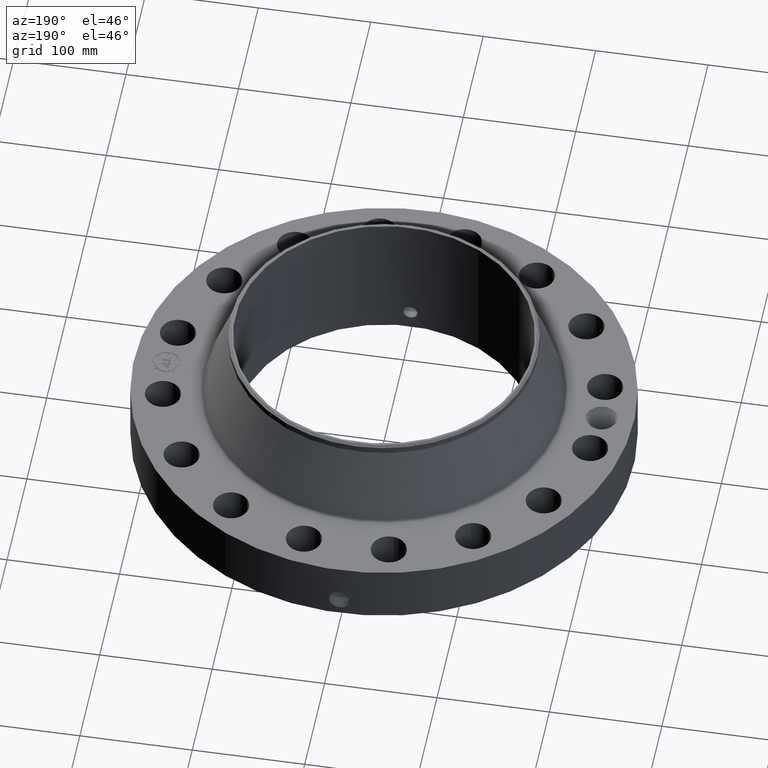
[diagram: clean part render]
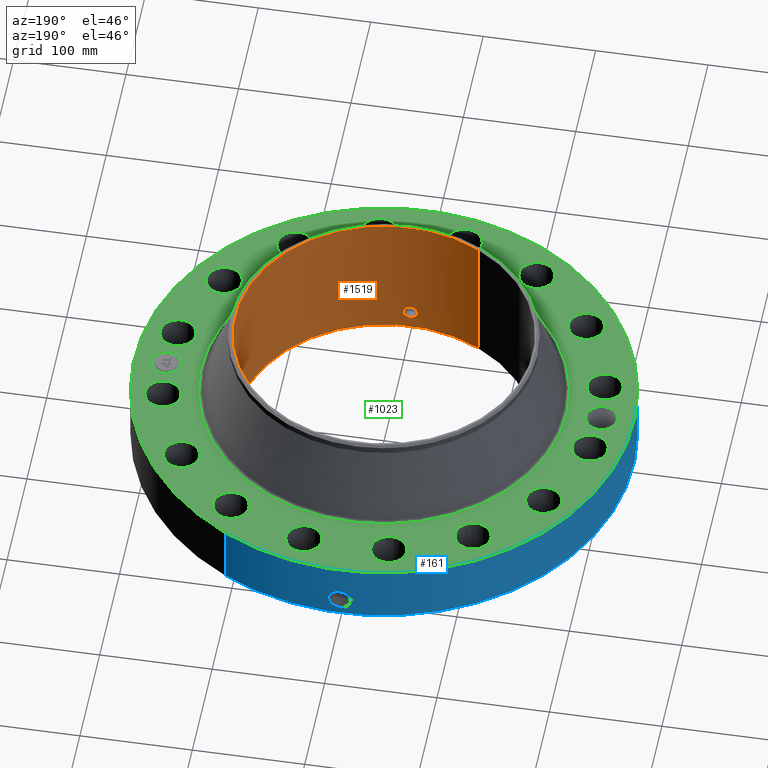
[diagram: same view with three faces highlighted in distinct colors, each labeled with its STEP entity id]
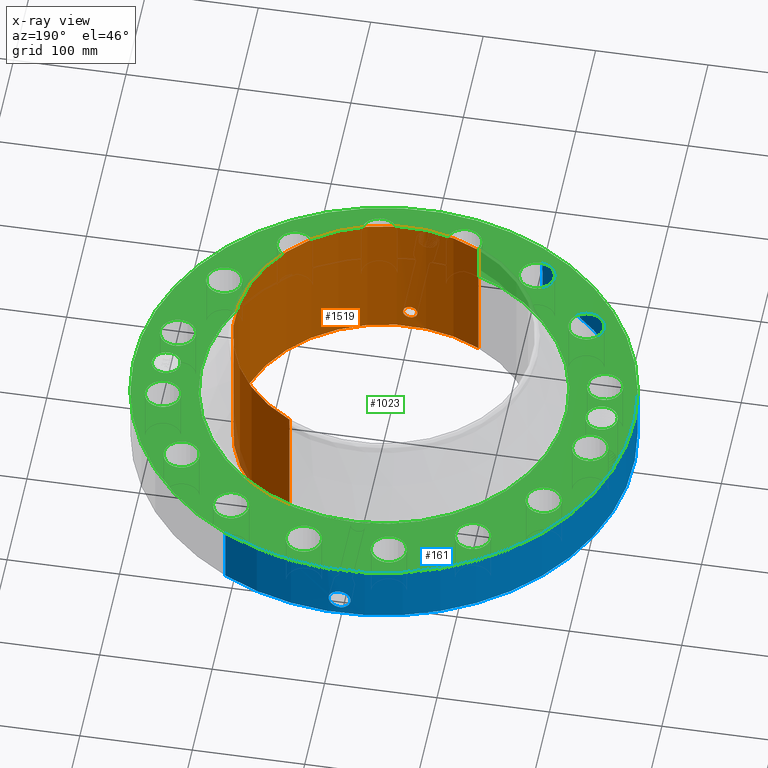
[diagram: x-ray of the same camera — body ghosted, the three highlighted faces saturated]
A machine part, auxiliary view with three faces highlighted in distinct colors.
The next image is the same camera in x-ray (body ghosted, the three faces saturated) — at least one of them is partly hidden behind the body in this view.
Their STEP definitions:

[orange] entity #1519 — the highlighted cylindrical surface (partial cylindrical patch) has radius 132.334 mm, axis along (0, 0, -1).
#250=AXIS2_PLACEMENT_3D('Circle Axis2P3D',#248,#249,$) ;
#1450=AXIS2_PLACEMENT_3D('Cylinder Axis2P3D',#1447,#1448,#1449) ;
#1454=AXIS2_PLACEMENT_3D('Circle Axis2P3D',#1452,#1453,$) ;
#248=CARTESIAN_POINT('Axis2P3D Location',(0.,0.,0.250000000001)) ;
#252=CARTESIAN_POINT('Vertex',(2.49780705614,4.57220514747,0.250000000001)) ;
#254=CARTESIAN_POINT('Vertex',(-2.49780705614,-4.57220514747,0.250000000001)) ;
#1447=CARTESIAN_POINT('Axis2P3D Location',(0.,0.,2.69000000001)) ;
#1452=CARTESIAN_POINT('Axis2P3D Location',(0.,0.,5.13000000002)) ;
#1456=CARTESIAN_POINT('Vertex',(2.49780705614,4.57220514747,5.13000000002)) ;
#1458=CARTESIAN_POINT('Vertex',(-2.49780705614,-4.57220514747,5.13000000002)) ;
#1461=CARTESIAN_POINT('Line Origine',(2.49780705614,4.57220514747,2.69000000001)) ;
#1466=CARTESIAN_POINT('Line Origine',(-2.49780705614,-4.57220514747,2.69000000001)) ;
#1478=CARTESIAN_POINT('Control Point',(0.219395640473,-5.2053785216,0.820143615352)) ;
#1479=CARTESIAN_POINT('Control Point',(0.206921702731,-5.20590427156,0.797310225472)) ;
#1480=CARTESIAN_POINT('Control Point',(0.191478170155,-5.20651775227,0.776101174169)) ;
#1481=CARTESIAN_POINT('Control Point',(0.173344984674,-5.20717156625,0.757029499509)) ;
#1482=CARTESIAN_POINT('Control Point',(0.112135178584,-5.20906263558,0.7075499254)) ;
#1483=CARTESIAN_POINT('Control Point',(0.0349794767205,-5.21029125719,0.684025896178)) ;
#1484=CARTESIAN_POINT('Control Point',(-0.0195628611526,-5.2103830242,0.682387718169)) ;
#1485=CARTESIAN_POINT('Control Point',(-0.124148978874,-5.2090305924,0.707531371156)) ;
#1486=CARTESIAN_POINT('Control Point',(-0.20319432049,-5.20623138386,0.780445772239)) ;
#1487=CARTESIAN_POINT('Control Point',(-0.232170399877,-5.20485332553,0.826662392487)) ;
#1488=CARTESIAN_POINT('Control Point',(-0.255833823077,-5.20371895022,0.904817915521)) ;
#1489=CARTESIAN_POINT('Control Point',(-0.248294621423,-5.20408005811,0.984204607757)) ;
#1490=CARTESIAN_POINT('Control Point',(-0.242060563257,-5.20438304277,1.01078607097)) ;
#1491=CARTESIAN_POINT('Control Point',(-0.232322753413,-5.20483367127,1.03619346314)) ;
#1492=CARTESIAN_POINT('Control Point',(-0.219395640473,-5.2053785216,1.05985638466)) ;
#1493=CARTESIAN_POINT('Vertex',(0.219395640473,-5.2053785216,0.820143615352)) ;
#1495=CARTESIAN_POINT('Vertex',(-0.219395640473,-5.2053785216,1.05985638466)) ;
#1499=CARTESIAN_POINT('Control Point',(-0.219395640473,-5.2053785216,1.05985638466)) ;
#1500=CARTESIAN_POINT('Control Point',(-0.206921702717,-5.20590427156,1.08268977456)) ;
#1501=CARTESIAN_POINT('Control Point',(-0.191478170121,-5.20651775227,1.10389882589)) ;
#1502=CARTESIAN_POINT('Control Point',(-0.17334498472,-5.20717156625,1.12297050046)) ;
#1503=CARTESIAN_POINT('Control Point',(-0.112135178606,-5.20906263558,1.1724500746)) ;
#1504=CARTESIAN_POINT('Control Point',(-0.0349794767043,-5.21029125719,1.19597410383)) ;
#1505=CARTESIAN_POINT('Control Point',(0.0195628611343,-5.2103830242,1.19761228184)) ;
#1506=CARTESIAN_POINT('Control Point',(0.12414897886,-5.2090305924,1.17246862886)) ;
#1507=CARTESIAN_POINT('Control Point',(0.203194320481,-5.20623138386,1.09955422778)) ;
#1508=CARTESIAN_POINT('Control Point',(0.23217039988,-5.20485332553,1.05333760751)) ;
#1509=CARTESIAN_POINT('Control Point',(0.255833823097,-5.20371895022,0.975182084416)) ;
#1510=CARTESIAN_POINT('Control Point',(0.248294621411,-5.20408005811,0.895795392119)) ;
#1511=CARTESIAN_POINT('Control Point',(0.242060563305,-5.20438304277,0.869213929157)) ;
#1512=CARTESIAN_POINT('Control Point',(0.232322753445,-5.20483367127,0.843806536923)) ;
#1513=CARTESIAN_POINT('Control Point',(0.219395640473,-5.2053785216,0.820143615352)) ;
#249=DIRECTION('Axis2P3D Direction',(0.,0.,-0.0393700787402)) ;
#1448=DIRECTION('Axis2P3D Direction',(0.,0.,-0.0393700787402)) ;
#1449=DIRECTION('Axis2P3D XDirection',(-0.0188750212049,-0.0345504945626,0.)) ;
#1453=DIRECTION('Axis2P3D Direction',(0.,0.,-0.0393700787402)) ;
#1462=DIRECTION('Vector Direction',(0.,0.,-0.0393700787402)) ;
#1467=DIRECTION('Vector Direction',(0.,0.,-0.0393700787402)) ;
#1463=VECTOR('Line Direction',#1462,0.0393700787402) ;
#1468=VECTOR('Line Direction',#1467,0.0393700787402) ;
#1472=ORIENTED_EDGE('',*,*,#1460,.F.) ;
#1473=ORIENTED_EDGE('',*,*,#1465,.T.) ;
#1474=ORIENTED_EDGE('',*,*,#256,.T.) ;
#1475=ORIENTED_EDGE('',*,*,#1470,.F.) ;
#1516=ORIENTED_EDGE('',*,*,#1497,.F.) ;
#1517=ORIENTED_EDGE('',*,*,#1514,.F.) ;
#1518=FACE_BOUND('',#1515,.T.) ;
#1519=ADVANCED_FACE('PartBody',(#1476,#1518),#1451,.F.) ;
#1477=B_SPLINE_CURVE_WITH_KNOTS('',5,(#1478,#1479,#1480,#1481,#1482,#1483,#1484,#1485,#1486,#1487,#1488,#1489,#1490,#1491,#1492),.UNSPECIFIED.,.F.,.U.,(6,3,3,3,6),(0.,4.67401145238,14.0221832362,23.3721751155,28.2159922942),.UNSPECIFIED.) ;
#1498=B_SPLINE_CURVE_WITH_KNOTS('',5,(#1499,#1500,#1501,#1502,#1503,#1504,#1505,#1506,#1507,#1508,#1509,#1510,#1511,#1512,#1513),.UNSPECIFIED.,.F.,.U.,(6,3,3,3,6),(0.,4.67401145758,14.022183243,23.3721751212,28.2159923117),.UNSPECIFIED.) ;
#251=CIRCLE('generated circle',#250,5.21000000002) ;
#1455=CIRCLE('generated circle',#1454,5.21000000002) ;
#1451=CYLINDRICAL_SURFACE('generated cylinder',#1450,5.21000000002) ;
#256=EDGE_CURVE('',#253,#255,#251,.T.) ;
#1460=EDGE_CURVE('',#1457,#1459,#1455,.T.) ;
#1465=EDGE_CURVE('',#1457,#253,#1464,.T.) ;
#1470=EDGE_CURVE('',#1459,#255,#1469,.T.) ;
#1497=EDGE_CURVE('',#1494,#1496,#1477,.T.) ;
#1514=EDGE_CURVE('',#1496,#1494,#1498,.T.) ;
#1471=EDGE_LOOP('',(#1472,#1473,#1474,#1475)) ;
#1515=EDGE_LOOP('',(#1516,#1517)) ;
#1476=FACE_OUTER_BOUND('',#1471,.T.) ;
#1464=LINE('Line',#1461,#1463) ;
#1469=LINE('Line',#1466,#1468) ;
#253=VERTEX_POINT('',#252) ;
#255=VERTEX_POINT('',#254) ;
#1457=VERTEX_POINT('',#1456) ;
#1459=VERTEX_POINT('',#1458) ;
#1494=VERTEX_POINT('',#1493) ;
#1496=VERTEX_POINT('',#1495) ;

[blue] entity #161 — the highlighted cylindrical surface (partial cylindrical patch) has radius 222.25 mm, axis along (0, 0, -1).
#38=AXIS2_PLACEMENT_3D('Cylinder Axis2P3D',#35,#36,#37) ;
#42=AXIS2_PLACEMENT_3D('Circle Axis2P3D',#40,#41,$) ;
#58=AXIS2_PLACEMENT_3D('Circle Axis2P3D',#56,#57,$) ;
#35=CARTESIAN_POINT('Axis2P3D Location',(0.,0.,2.69000000001)) ;
#40=CARTESIAN_POINT('Axis2P3D Location',(0.,0.,0.250000000001)) ;
#44=CARTESIAN_POINT('Vertex',(-4.1949734628,-7.67884741657,0.250000000001)) ;
#46=CARTESIAN_POINT('Vertex',(4.1949734628,7.67884741657,0.250000000001)) ;
#49=CARTESIAN_POINT('Line Origine',(-4.1949734628,-7.67884741657,1.31000000001)) ;
#53=CARTESIAN_POINT('Vertex',(-4.1949734628,-7.67884741657,2.37000000001)) ;
#56=CARTESIAN_POINT('Axis2P3D Location',(0.,0.,2.37000000001)) ;
#60=CARTESIAN_POINT('Vertex',(4.1949734628,7.67884741657,2.37000000001)) ;
#63=CARTESIAN_POINT('Line Origine',(4.1949734628,7.67884741657,1.31000000001)) ;
#75=CARTESIAN_POINT('Control Point',(-0.0581089625366,8.74980704639,1.28931263406)) ;
#76=CARTESIAN_POINT('Control Point',(-0.0391512505226,8.74993294779,1.29247036247)) ;
#77=CARTESIAN_POINT('Control Point',(-0.0199353917117,8.74999839758,1.29407954697)) ;
#78=CARTESIAN_POINT('Control Point',(-0.000716211353151,8.74999997072,1.29411849893)) ;
#79=CARTESIAN_POINT('Vertex',(-0.0580953077663,8.74980738873,1.28931519353)) ;
#81=CARTESIAN_POINT('Vertex',(-0.000716087123921,8.74999997073,1.29411850938)) ;
#85=CARTESIAN_POINT('Control Point',(-0.0580952083203,8.74980713772,1.28931463772)) ;
#86=CARTESIAN_POINT('Control Point',(-0.0974883504032,8.74954558307,1.28448275707)) ;
#87=CARTESIAN_POINT('Control Point',(-0.13613006223,8.749012969,1.27246972711)) ;
#88=CARTESIAN_POINT('Control Point',(-0.171610206376,8.74831697744,1.25416185771)) ;
#89=CARTESIAN_POINT('Vertex',(-0.171610206376,8.74831697744,1.25416185771)) ;
#93=CARTESIAN_POINT('Control Point',(-0.0302669452421,8.74994765199,0.531133858009)) ;
#94=CARTESIAN_POINT('Control Point',(-0.0865126331868,8.74975309253,0.538286206305)) ;
#95=CARTESIAN_POINT('Control Point',(-0.141163784497,8.74911210098,0.555899644807)) ;
#96=CARTESIAN_POINT('Control Point',(-0.191479474381,8.74808366127,0.583467507006)) ;
#97=CARTESIAN_POINT('Control Point',(-0.264585210891,8.74612690907,0.642883900374)) ;
#98=CARTESIAN_POINT('Control Point',(-0.316528471613,8.74430507465,0.719208877289)) ;
#99=CARTESIAN_POINT('Control Point',(-0.333583708525,8.74365536413,0.75188083272)) ;
#100=CARTESIAN_POINT('Control Point',(-0.368975032972,8.74224702288,0.844035268682)) ;
#101=CARTESIAN_POINT('Control Point',(-0.375098714797,8.74194353724,0.942677587401)) ;
#102=CARTESIAN_POINT('Control Point',(-0.366946053507,8.7423150234,1.0043264818)) ;
#103=CARTESIAN_POINT('Control Point',(-0.333642919166,8.7437418217,1.10228712867)) ;
#104=CARTESIAN_POINT('Control Point',(-0.270966418058,8.74586349314,1.18272418421)) ;
#105=CARTESIAN_POINT('Control Point',(-0.241231340915,8.74676440562,1.21147018008)) ;
#106=CARTESIAN_POINT('Control Point',(-0.20776613861,8.74760772936,1.23550527929)) ;
#107=CARTESIAN_POINT('Control Point',(-0.171610206376,8.74831697744,1.25416185771)) ;
#108=CARTESIAN_POINT('Vertex',(-0.0302669452421,8.74994765199,0.531133858009)) ;
#112=CARTESIAN_POINT('Control Point',(-0.0302669452421,8.74994765199,0.531133858009)) ;
#113=CARTESIAN_POINT('Control Point',(-0.020172125313,8.74998257099,0.530866678197)) ;
#114=CARTESIAN_POINT('Control Point',(-0.0100722732255,8.75000000318,0.530947102164)) ;
#115=CARTESIAN_POINT('Control Point',(2.72878355316E-006,8.75000000003,0.531374667805)) ;
#116=CARTESIAN_POINT('Vertex',(2.72878354006E-006,8.75000000003,0.531374667805)) ;
#120=CARTESIAN_POINT('Control Point',(0.19328241765,8.74786499139,0.58620888473)) ;
#121=CARTESIAN_POINT('Control Point',(0.14925996288,8.74883765918,0.561336698188)) ;
#122=CARTESIAN_POINT('Control Point',(0.101168835308,8.74960564366,0.543535968941)) ;
#123=CARTESIAN_POINT('Control Point',(0.0508246752075,8.74999998419,0.533531464398)) ;
#124=CARTESIAN_POINT('Control Point',(2.72878352208E-006,8.75000000003,0.531374667805)) ;
#125=CARTESIAN_POINT('Vertex',(0.19328241765,8.74786499139,0.58620888473)) ;
#129=CARTESIAN_POINT('Control Point',(0.19328241765,8.74786499139,0.58620888473)) ;
#130=CARTESIAN_POINT('Control Point',(0.222320018174,8.74722341112,0.602614798428)) ;
#131=CARTESIAN_POINT('Control Point',(0.249702852839,8.74649784976,0.621904373427)) ;
#132=CARTESIAN_POINT('Control Point',(0.275025900449,8.74572453906,0.643907791763)) ;
#133=CARTESIAN_POINT('Control Point',(0.341959851597,8.74345928948,0.715550689478)) ;
#134=CARTESIAN_POINT('Control Point',(0.384721494864,8.74157999932,0.805221661373)) ;
#135=CARTESIAN_POINT('Control Point',(0.399824078796,8.74084549763,0.86959665655)) ;
#136=CARTESIAN_POINT('Control Point',(0.400741236113,8.74084616963,0.983900945049)) ;
#137=CARTESIAN_POINT('Control Point',(0.360682761484,8.74259093649,1.08862858384)) ;
#138=CARTESIAN_POINT('Control Point',(0.336434934039,8.74359787656,1.13009590906)) ;
#139=CARTESIAN_POINT('Control Point',(0.267541246707,8.74613174572,1.21398892367)) ;
#140=CARTESIAN_POINT('Control Point',(0.174601876313,8.74851033483,1.26870826522)) ;
#141=CARTESIAN_POINT('Control Point',(0.117427738831,8.74951483398,1.28858356661)) ;
#142=CARTESIAN_POINT('Control Point',(0.0582715844926,8.75000017228,1.29701111921)) ;
#143=CARTESIAN_POINT('Control Point',(-2.58579355255E-005,8.75,1.29415298432)) ;
#144=CARTESIAN_POINT('Vertex',(-2.58579355366E-005,8.75,1.29415298432)) ;
#148=CARTESIAN_POINT('Control Point',(-0.000716087113735,8.74999997073,1.29411850936)) ;
#149=CARTESIAN_POINT('Control Point',(-0.000370996570186,8.74999999898,1.2941360633)) ;
#150=CARTESIAN_POINT('Control Point',(-2.58579413603E-005,8.75,1.29415298432)) ;
#36=DIRECTION('Axis2P3D Direction',(0.,0.,-0.0393700787402)) ;
#37=DIRECTION('Axis2P3D XDirection',(0.0188750212049,0.0345504945626,0.)) ;
#41=DIRECTION('Axis2P3D Direction',(0.,0.,-0.0393700787402)) ;
#50=DIRECTION('Vector Direction',(0.,0.,-0.0393700787402)) ;
#57=DIRECTION('Axis2P3D Direction',(0.,0.,-0.0393700787402)) ;
#64=DIRECTION('Vector Direction',(0.,0.,-0.0393700787402)) ;
#51=VECTOR('Line Direction',#50,0.0393700787402) ;
#65=VECTOR('Line Direction',#64,0.0393700787402) ;
#69=ORIENTED_EDGE('',*,*,#48,.F.) ;
#70=ORIENTED_EDGE('',*,*,#55,.T.) ;
#71=ORIENTED_EDGE('',*,*,#62,.T.) ;
#72=ORIENTED_EDGE('',*,*,#67,.F.) ;
#153=ORIENTED_EDGE('',*,*,#83,.F.) ;
#154=ORIENTED_EDGE('',*,*,#91,.T.) ;
#155=ORIENTED_EDGE('',*,*,#110,.F.) ;
#156=ORIENTED_EDGE('',*,*,#118,.T.) ;
#157=ORIENTED_EDGE('',*,*,#127,.F.) ;
#158=ORIENTED_EDGE('',*,*,#146,.T.) ;
#159=ORIENTED_EDGE('',*,*,#151,.F.) ;
#160=FACE_BOUND('',#152,.T.) ;
#161=ADVANCED_FACE('PartBody',(#73,#160),#39,.T.) ;
#74=B_SPLINE_CURVE_WITH_KNOTS('',3,(#75,#76,#77,#78),.UNSPECIFIED.,.F.,.U.,(4,4),(4.38916387412,6.52135751601),.UNSPECIFIED.) ;
#84=B_SPLINE_CURVE_WITH_KNOTS('',3,(#85,#86,#87,#88),.UNSPECIFIED.,.F.,.U.,(4,4),(0.,4.45941834612),.UNSPECIFIED.) ;
#92=B_SPLINE_CURVE_WITH_KNOTS('',5,(#93,#94,#95,#96,#97,#98,#99,#100,#101,#102,#103,#104,#105,#106,#107),.UNSPECIFIED.,.F.,.U.,(6,3,3,3,6),(0.,9.85389268392,16.4310811859,27.5941599095,35.1680876067),.UNSPECIFIED.) ;
#111=B_SPLINE_CURVE_WITH_KNOTS('',3,(#112,#113,#114,#115),.UNSPECIFIED.,.F.,.U.,(4,4),(0.,1.05295553536),.UNSPECIFIED.) ;
#119=B_SPLINE_CURVE_WITH_KNOTS('',4,(#120,#121,#122,#123,#124),.UNSPECIFIED.,.F.,.U.,(5,5),(0.,7.08198368507),.UNSPECIFIED.) ;
#128=B_SPLINE_CURVE_WITH_KNOTS('',5,(#129,#130,#131,#132,#133,#134,#135,#136,#137,#138,#139,#140,#141,#142,#143),.UNSPECIFIED.,.F.,.U.,(6,3,3,3,6),(0.,5.83917379762,17.1007627844,25.5637752972,36.4607761754),.UNSPECIFIED.) ;
#147=B_SPLINE_CURVE_WITH_KNOTS('',2,(#148,#149,#150),.UNSPECIFIED.,.F.,.U.,(3,3),(1.04631464727,1.07212007524),.UNSPECIFIED.) ;
#43=CIRCLE('generated circle',#42,8.75000000003) ;
#59=CIRCLE('generated circle',#58,8.75000000003) ;
#39=CYLINDRICAL_SURFACE('generated cylinder',#38,8.75000000003) ;
#48=EDGE_CURVE('',#45,#47,#43,.T.) ;
#55=EDGE_CURVE('',#45,#54,#52,.F.) ;
#62=EDGE_CURVE('',#54,#61,#59,.T.) ;
#67=EDGE_CURVE('',#47,#61,#66,.F.) ;
#83=EDGE_CURVE('',#80,#82,#74,.T.) ;
#91=EDGE_CURVE('',#80,#90,#84,.T.) ;
#110=EDGE_CURVE('',#109,#90,#92,.T.) ;
#118=EDGE_CURVE('',#109,#117,#111,.T.) ;
#127=EDGE_CURVE('',#126,#117,#119,.T.) ;
#146=EDGE_CURVE('',#126,#145,#128,.T.) ;
#151=EDGE_CURVE('',#82,#145,#147,.T.) ;
#68=EDGE_LOOP('',(#69,#70,#71,#72)) ;
#152=EDGE_LOOP('',(#153,#154,#155,#156,#157,#158,#159)) ;
#73=FACE_OUTER_BOUND('',#68,.T.) ;
#52=LINE('Line',#49,#51) ;
#66=LINE('Line',#63,#65) ;
#45=VERTEX_POINT('',#44) ;
#47=VERTEX_POINT('',#46) ;
#54=VERTEX_POINT('',#53) ;
#61=VERTEX_POINT('',#60) ;
#80=VERTEX_POINT('',#79) ;
#82=VERTEX_POINT('',#81) ;
#90=VERTEX_POINT('',#89) ;
#109=VERTEX_POINT('',#108) ;
#117=VERTEX_POINT('',#116) ;
#126=VERTEX_POINT('',#125) ;
#145=VERTEX_POINT('',#144) ;

[green] entity #1023 — the highlighted planar face has unit normal (0, 0, -1).
#58=AXIS2_PLACEMENT_3D('Circle Axis2P3D',#56,#57,$) ;
#539=AXIS2_PLACEMENT_3D('Circle Axis2P3D',#537,#538,$) ;
#639=AXIS2_PLACEMENT_3D('Plane Axis2P3D',#636,#637,#638) ;
#675=AXIS2_PLACEMENT_3D('Circle Axis2P3D',#673,#674,$) ;
#682=AXIS2_PLACEMENT_3D('Circle Axis2P3D',#680,#681,$) ;
#689=AXIS2_PLACEMENT_3D('Circle Axis2P3D',#687,#688,$) ;
#701=AXIS2_PLACEMENT_3D('Circle Axis2P3D',#699,#700,$) ;
#710=AXIS2_PLACEMENT_3D('Circle Axis2P3D',#708,#709,$) ;
#719=AXIS2_PLACEMENT_3D('Circle Axis2P3D',#717,#718,$) ;
#728=AXIS2_PLACEMENT_3D('Circle Axis2P3D',#726,#727,$) ;
#737=AXIS2_PLACEMENT_3D('Circle Axis2P3D',#735,#736,$) ;
#746=AXIS2_PLACEMENT_3D('Circle Axis2P3D',#744,#745,$) ;
#755=AXIS2_PLACEMENT_3D('Circle Axis2P3D',#753,#754,$) ;
#764=AXIS2_PLACEMENT_3D('Circle Axis2P3D',#762,#763,$) ;
#773=AXIS2_PLACEMENT_3D('Circle Axis2P3D',#771,#772,$) ;
#782=AXIS2_PLACEMENT_3D('Circle Axis2P3D',#780,#781,$) ;
#791=AXIS2_PLACEMENT_3D('Circle Axis2P3D',#789,#790,$) ;
#800=AXIS2_PLACEMENT_3D('Circle Axis2P3D',#798,#799,$) ;
#809=AXIS2_PLACEMENT_3D('Circle Axis2P3D',#807,#808,$) ;
#818=AXIS2_PLACEMENT_3D('Circle Axis2P3D',#816,#817,$) ;
#827=AXIS2_PLACEMENT_3D('Circle Axis2P3D',#825,#826,$) ;
#836=AXIS2_PLACEMENT_3D('Circle Axis2P3D',#834,#835,$) ;
#845=AXIS2_PLACEMENT_3D('Circle Axis2P3D',#843,#844,$) ;
#854=AXIS2_PLACEMENT_3D('Circle Axis2P3D',#852,#853,$) ;
#863=AXIS2_PLACEMENT_3D('Circle Axis2P3D',#861,#862,$) ;
#872=AXIS2_PLACEMENT_3D('Circle Axis2P3D',#870,#871,$) ;
#881=AXIS2_PLACEMENT_3D('Circle Axis2P3D',#879,#880,$) ;
#890=AXIS2_PLACEMENT_3D('Circle Axis2P3D',#888,#889,$) ;
#899=AXIS2_PLACEMENT_3D('Circle Axis2P3D',#897,#898,$) ;
#908=AXIS2_PLACEMENT_3D('Circle Axis2P3D',#906,#907,$) ;
#917=AXIS2_PLACEMENT_3D('Circle Axis2P3D',#915,#916,$) ;
#926=AXIS2_PLACEMENT_3D('Circle Axis2P3D',#924,#925,$) ;
#935=AXIS2_PLACEMENT_3D('Circle Axis2P3D',#933,#934,$) ;
#944=AXIS2_PLACEMENT_3D('Circle Axis2P3D',#942,#943,$) ;
#953=AXIS2_PLACEMENT_3D('Circle Axis2P3D',#951,#952,$) ;
#962=AXIS2_PLACEMENT_3D('Circle Axis2P3D',#960,#961,$) ;
#971=AXIS2_PLACEMENT_3D('Circle Axis2P3D',#969,#970,$) ;
#980=AXIS2_PLACEMENT_3D('Circle Axis2P3D',#978,#979,$) ;
#989=AXIS2_PLACEMENT_3D('Circle Axis2P3D',#987,#988,$) ;
#998=AXIS2_PLACEMENT_3D('Circle Axis2P3D',#996,#997,$) ;
#1007=AXIS2_PLACEMENT_3D('Circle Axis2P3D',#1005,#1006,$) ;
#1016=AXIS2_PLACEMENT_3D('Circle Axis2P3D',#1014,#1015,$) ;
#53=CARTESIAN_POINT('Vertex',(-4.1949734628,-7.67884741657,2.37000000001)) ;
#56=CARTESIAN_POINT('Axis2P3D Location',(0.,0.,2.37000000001)) ;
#60=CARTESIAN_POINT('Vertex',(4.1949734628,7.67884741657,2.37000000001)) ;
#537=CARTESIAN_POINT('Axis2P3D Location',(0.,0.,2.37000000001)) ;
#636=CARTESIAN_POINT('Axis2P3D Location',(0.,8.75000000003,2.37000000001)) ;
#646=CARTESIAN_POINT('Control Point',(-7.06250000003,0.,2.37000000001)) ;
#647=CARTESIAN_POINT('Control Point',(-7.06446298299,0.0486163636845,2.37000000001)) ;
#648=CARTESIAN_POINT('Control Point',(-7.07168281614,0.096921440334,2.37000000001)) ;
#649=CARTESIAN_POINT('Control Point',(-7.08411697116,0.144150906714,2.37000000001)) ;
#650=CARTESIAN_POINT('Control Point',(-7.10234425253,0.191616400428,2.37000000001)) ;
#651=CARTESIAN_POINT('Control Point',(-7.12563938019,0.236345157382,2.37000000001)) ;
#652=CARTESIAN_POINT('Control Point',(-7.12666372234,0.238288331361,2.37000000001)) ;
#653=CARTESIAN_POINT('Control Point',(-7.12769761217,0.240226185511,2.37000000001)) ;
#654=CARTESIAN_POINT('Control Point',(-7.12874101425,0.242158656953,2.37000000001)) ;
#655=CARTESIAN_POINT('Vertex',(-7.06250000003,0.,2.37000000001)) ;
#657=CARTESIAN_POINT('Vertex',(-7.12874101425,0.242158656953,2.37000000001)) ;
#661=CARTESIAN_POINT('Control Point',(-7.06250000003,0.,2.37000000001)) ;
#662=CARTESIAN_POINT('Control Point',(-7.06446358948,-0.0486313829753,2.37000000001)) ;
#663=CARTESIAN_POINT('Control Point',(-7.07168728763,-0.0969512863355,2.37000000001)) ;
#664=CARTESIAN_POINT('Control Point',(-7.08412001795,-0.144176677374,2.37000000001)) ;
#665=CARTESIAN_POINT('Control Point',(-7.10236431676,-0.191689550633,2.37000000001)) ;
#666=CARTESIAN_POINT('Control Point',(-7.12567489204,-0.236441716072,2.37000000001)) ;
#667=CARTESIAN_POINT('Control Point',(-7.12673354021,-0.238448876166,2.37000000001)) ;
#668=CARTESIAN_POINT('Control Point',(-7.12780235955,-0.240450312534,2.37000000001)) ;
#669=CARTESIAN_POINT('Control Point',(-7.12888131021,-0.242445956271,2.37000000001)) ;
#670=CARTESIAN_POINT('Vertex',(-7.12888131021,-0.242445956271,2.37000000001)) ;
#673=CARTESIAN_POINT('Axis2P3D Location',(-7.62500000003,-1.1189649382E-015,2.37000000001)) ;
#677=CARTESIAN_POINT('Vertex',(-7.14040768518,-0.264733988163,2.37000000001)) ;
#680=CARTESIAN_POINT('Axis2P3D Location',(-7.62500000003,-1.1189649382E-015,2.37000000001)) ;
#684=CARTESIAN_POINT('Vertex',(-8.10959231488,0.264733988163,2.37000000001)) ;
#687=CARTESIAN_POINT('Axis2P3D Location',(-7.62500000003,-1.1189649382E-015,2.37000000001)) ;
#699=CARTESIAN_POINT('Axis2P3D Location',(7.4784877631,-1.48756370538,2.37000000001)) ;
#703=CARTESIAN_POINT('Vertex',(6.92999866192,-1.18792274375,2.37000000001)) ;
#705=CARTESIAN_POINT('Vertex',(8.02697686429,-1.78720466701,2.37000000001)) ;
#708=CARTESIAN_POINT('Axis2P3D Location',(7.4784877631,-1.48756370538,2.37000000001)) ;
#717=CARTESIAN_POINT('Axis2P3D Location',(0.,0.,2.37000000001)) ;
#721=CARTESIAN_POINT('Vertex',(-3.06484130292,-5.61015437399,2.37000000001)) ;
#723=CARTESIAN_POINT('Vertex',(3.06484130292,5.61015437399,2.37000000001)) ;
#726=CARTESIAN_POINT('Axis2P3D Location',(0.,0.,2.37000000001)) ;
#735=CARTESIAN_POINT('Axis2P3D Location',(6.33995579383,-4.23622302679,2.37000000001)) ;
#739=CARTESIAN_POINT('Vertex',(6.73202601655,-4.7229528702,2.37000000001)) ;
#741=CARTESIAN_POINT('Vertex',(5.94788557112,-3.74949318338,2.37000000001)) ;
#744=CARTESIAN_POINT('Axis2P3D Location',(6.33995579383,-4.23622302679,2.37000000001)) ;
#753=CARTESIAN_POINT('Axis2P3D Location',(4.23622302679,-6.33995579383,2.37000000001)) ;
#757=CARTESIAN_POINT('Vertex',(4.41218523376,-6.93967431258,2.37000000001)) ;
#759=CARTESIAN_POINT('Vertex',(4.06026081983,-5.74023727509,2.37000000001)) ;
#762=CARTESIAN_POINT('Axis2P3D Location',(4.23622302679,-6.33995579383,2.37000000001)) ;
#771=CARTESIAN_POINT('Axis2P3D Location',(1.48756370538,-7.4784877631,2.37000000001)) ;
#775=CARTESIAN_POINT('Vertex',(1.42062924568,-8.09989324917,2.37000000001)) ;
#777=CARTESIAN_POINT('Vertex',(1.55449816507,-6.85708227704,2.37000000001)) ;
#780=CARTESIAN_POINT('Axis2P3D Location',(1.48756370538,-7.4784877631,2.37000000001)) ;
#789=CARTESIAN_POINT('Axis2P3D Location',(-1.48756370538,-7.4784877631,2.37000000001)) ;
#793=CARTESIAN_POINT('Vertex',(-1.78720466701,-8.02697686429,2.37000000001)) ;
#795=CARTESIAN_POINT('Vertex',(-1.18792274375,-6.92999866192,2.37000000001)) ;
#798=CARTESIAN_POINT('Axis2P3D Location',(-1.48756370538,-7.4784877631,2.37000000001)) ;
#807=CARTESIAN_POINT('Axis2P3D Location',(-4.23622302679,-6.33995579383,2.37000000001)) ;
#811=CARTESIAN_POINT('Vertex',(-4.7229528702,-6.73202601655,2.37000000001)) ;
#813=CARTESIAN_POINT('Vertex',(-3.74949318338,-5.94788557112,2.37000000001)) ;
#816=CARTESIAN_POINT('Axis2P3D Location',(-4.23622302679,-6.33995579383,2.37000000001)) ;
#825=CARTESIAN_POINT('Axis2P3D Location',(-6.33995579383,-4.23622302679,2.37000000001)) ;
#829=CARTESIAN_POINT('Vertex',(-6.93967431258,-4.41218523376,2.37000000001)) ;
#831=CARTESIAN_POINT('Vertex',(-5.74023727509,-4.06026081983,2.37000000001)) ;
#834=CARTESIAN_POINT('Axis2P3D Location',(-6.33995579383,-4.23622302679,2.37000000001)) ;
#843=CARTESIAN_POINT('Axis2P3D Location',(-7.4784877631,-1.48756370538,2.37000000001)) ;
#847=CARTESIAN_POINT('Vertex',(-8.09989324917,-1.42062924568,2.37000000001)) ;
#849=CARTESIAN_POINT('Vertex',(-6.85708227704,-1.55449816507,2.37000000001)) ;
#852=CARTESIAN_POINT('Axis2P3D Location',(-7.4784877631,-1.48756370538,2.37000000001)) ;
#861=CARTESIAN_POINT('Axis2P3D Location',(-7.4784877631,1.48756370538,2.37000000001)) ;
#865=CARTESIAN_POINT('Vertex',(-8.02697686429,1.78720466701,2.37000000001)) ;
#867=CARTESIAN_POINT('Vertex',(-6.92999866192,1.18792274375,2.37000000001)) ;
#870=CARTESIAN_POINT('Axis2P3D Location',(-7.4784877631,1.48756370538,2.37000000001)) ;
#879=CARTESIAN_POINT('Axis2P3D Location',(-6.33995579383,4.23622302679,2.37000000001)) ;
#883=CARTESIAN_POINT('Vertex',(-6.73202601655,4.7229528702,2.37000000001)) ;
#885=CARTESIAN_POINT('Vertex',(-5.94788557112,3.74949318338,2.37000000001)) ;
#888=CARTESIAN_POINT('Axis2P3D Location',(-6.33995579383,4.23622302679,2.37000000001)) ;
#897=CARTESIAN_POINT('Axis2P3D Location',(-4.23622302679,6.33995579383,2.37000000001)) ;
#901=CARTESIAN_POINT('Vertex',(-4.41218523376,6.93967431258,2.37000000001)) ;
#903=CARTESIAN_POINT('Vertex',(-4.06026081983,5.74023727509,2.37000000001)) ;
#906=CARTESIAN_POINT('Axis2P3D Location',(-4.23622302679,6.33995579383,2.37000000001)) ;
#915=CARTESIAN_POINT('Axis2P3D Location',(-1.48756370538,7.4784877631,2.37000000001)) ;
#919=CARTESIAN_POINT('Vertex',(-1.42062924568,8.09989324917,2.37000000001)) ;
#921=CARTESIAN_POINT('Vertex',(-1.55449816507,6.85708227704,2.37000000001)) ;
#924=CARTESIAN_POINT('Axis2P3D Location',(-1.48756370538,7.4784877631,2.37000000001)) ;
#933=CARTESIAN_POINT('Axis2P3D Location',(1.48756370538,7.4784877631,2.37000000001)) ;
#937=CARTESIAN_POINT('Vertex',(1.78720466701,8.02697686429,2.37000000001)) ;
#939=CARTESIAN_POINT('Vertex',(1.18792274375,6.92999866192,2.37000000001)) ;
#942=CARTESIAN_POINT('Axis2P3D Location',(1.48756370538,7.4784877631,2.37000000001)) ;
#951=CARTESIAN_POINT('Axis2P3D Location',(4.23622302679,6.33995579383,2.37000000001)) ;
#955=CARTESIAN_POINT('Vertex',(4.7229528702,6.73202601655,2.37000000001)) ;
#957=CARTESIAN_POINT('Vertex',(3.74949318338,5.94788557112,2.37000000001)) ;
#960=CARTESIAN_POINT('Axis2P3D Location',(4.23622302679,6.33995579383,2.37000000001)) ;
#969=CARTESIAN_POINT('Axis2P3D Location',(6.33995579383,4.23622302679,2.37000000001)) ;
#973=CARTESIAN_POINT('Vertex',(6.93967431258,4.41218523376,2.37000000001)) ;
#975=CARTESIAN_POINT('Vertex',(5.74023727509,4.06026081983,2.37000000001)) ;
#978=CARTESIAN_POINT('Axis2P3D Location',(6.33995579383,4.23622302679,2.37000000001)) ;
#987=CARTESIAN_POINT('Axis2P3D Location',(7.4784877631,1.48756370538,2.37000000001)) ;
#991=CARTESIAN_POINT('Vertex',(8.09989324917,1.42062924568,2.37000000001)) ;
#993=CARTESIAN_POINT('Vertex',(6.85708227704,1.55449816507,2.37000000001)) ;
#996=CARTESIAN_POINT('Axis2P3D Location',(7.4784877631,1.48756370538,2.37000000001)) ;
#1005=CARTESIAN_POINT('Axis2P3D Location',(7.62500000003,-3.35689481461E-014,2.37000000001)) ;
#1009=CARTESIAN_POINT('Vertex',(7.62500000003,0.499999995002,2.37000000001)) ;
#1011=CARTESIAN_POINT('Vertex',(7.62500000003,-0.499999995002,2.37000000001)) ;
#1014=CARTESIAN_POINT('Axis2P3D Location',(7.62500000003,-3.35689481461E-014,2.37000000001)) ;
#57=DIRECTION('Axis2P3D Direction',(0.,0.,-0.0393700787402)) ;
#538=DIRECTION('Axis2P3D Direction',(0.,0.,-0.0393700787402)) ;
#637=DIRECTION('Axis2P3D Direction',(0.,0.,-0.0393700787402)) ;
#638=DIRECTION('Axis2P3D XDirection',(0.0393700787402,0.,0.)) ;
#674=DIRECTION('Axis2P3D Direction',(0.,0.,-0.0393700787402)) ;
#681=DIRECTION('Axis2P3D Direction',(0.,0.,-0.0393700787402)) ;
#688=DIRECTION('Axis2P3D Direction',(0.,0.,-0.0393700787402)) ;
#700=DIRECTION('Axis2P3D Direction',(0.,0.,-0.0393700787402)) ;
#709=DIRECTION('Axis2P3D Direction',(0.,0.,-0.0393700787402)) ;
#718=DIRECTION('Axis2P3D Direction',(0.,0.,-0.0393700787402)) ;
#727=DIRECTION('Axis2P3D Direction',(0.,0.,-0.0393700787402)) ;
#736=DIRECTION('Axis2P3D Direction',(0.,0.,-0.0393700787402)) ;
#745=DIRECTION('Axis2P3D Direction',(0.,0.,-0.0393700787402)) ;
#754=DIRECTION('Axis2P3D Direction',(0.,0.,-0.0393700787402)) ;
#763=DIRECTION('Axis2P3D Direction',(0.,0.,-0.0393700787402)) ;
#772=DIRECTION('Axis2P3D Direction',(0.,0.,-0.0393700787402)) ;
#781=DIRECTION('Axis2P3D Direction',(0.,0.,-0.0393700787402)) ;
#790=DIRECTION('Axis2P3D Direction',(0.,0.,-0.0393700787402)) ;
#799=DIRECTION('Axis2P3D Direction',(0.,0.,-0.0393700787402)) ;
#808=DIRECTION('Axis2P3D Direction',(0.,0.,-0.0393700787402)) ;
#817=DIRECTION('Axis2P3D Direction',(0.,0.,-0.0393700787402)) ;
#826=DIRECTION('Axis2P3D Direction',(0.,0.,-0.0393700787402)) ;
#835=DIRECTION('Axis2P3D Direction',(0.,0.,-0.0393700787402)) ;
#844=DIRECTION('Axis2P3D Direction',(0.,0.,-0.0393700787402)) ;
#853=DIRECTION('Axis2P3D Direction',(0.,0.,-0.0393700787402)) ;
#862=DIRECTION('Axis2P3D Direction',(0.,0.,-0.0393700787402)) ;
#871=DIRECTION('Axis2P3D Direction',(0.,0.,-0.0393700787402)) ;
#880=DIRECTION('Axis2P3D Direction',(0.,0.,-0.0393700787402)) ;
#889=DIRECTION('Axis2P3D Direction',(0.,0.,-0.0393700787402)) ;
#898=DIRECTION('Axis2P3D Direction',(0.,0.,-0.0393700787402)) ;
#907=DIRECTION('Axis2P3D Direction',(0.,0.,-0.0393700787402)) ;
#916=DIRECTION('Axis2P3D Direction',(0.,0.,-0.0393700787402)) ;
#925=DIRECTION('Axis2P3D Direction',(0.,0.,-0.0393700787402)) ;
#934=DIRECTION('Axis2P3D Direction',(0.,0.,-0.0393700787402)) ;
#943=DIRECTION('Axis2P3D Direction',(0.,0.,-0.0393700787402)) ;
#952=DIRECTION('Axis2P3D Direction',(0.,0.,-0.0393700787402)) ;
#961=DIRECTION('Axis2P3D Direction',(0.,0.,-0.0393700787402)) ;
#970=DIRECTION('Axis2P3D Direction',(0.,0.,-0.0393700787402)) ;
#979=DIRECTION('Axis2P3D Direction',(0.,0.,-0.0393700787402)) ;
#988=DIRECTION('Axis2P3D Direction',(0.,0.,-0.0393700787402)) ;
#997=DIRECTION('Axis2P3D Direction',(0.,0.,-0.0393700787402)) ;
#1006=DIRECTION('Axis2P3D Direction',(0.,0.,-0.0393700787402)) ;
#1015=DIRECTION('Axis2P3D Direction',(0.,0.,-0.0393700787402)) ;
#642=ORIENTED_EDGE('',*,*,#541,.F.) ;
#643=ORIENTED_EDGE('',*,*,#62,.F.) ;
#693=ORIENTED_EDGE('',*,*,#659,.F.) ;
#694=ORIENTED_EDGE('',*,*,#672,.T.) ;
#695=ORIENTED_EDGE('',*,*,#679,.T.) ;
#696=ORIENTED_EDGE('',*,*,#686,.T.) ;
#697=ORIENTED_EDGE('',*,*,#691,.T.) ;
#714=ORIENTED_EDGE('',*,*,#707,.T.) ;
#715=ORIENTED_EDGE('',*,*,#712,.T.) ;
#732=ORIENTED_EDGE('',*,*,#725,.T.) ;
#733=ORIENTED_EDGE('',*,*,#730,.T.) ;
#750=ORIENTED_EDGE('',*,*,#743,.T.) ;
#751=ORIENTED_EDGE('',*,*,#748,.T.) ;
#768=ORIENTED_EDGE('',*,*,#761,.T.) ;
#769=ORIENTED_EDGE('',*,*,#766,.T.) ;
#786=ORIENTED_EDGE('',*,*,#779,.T.) ;
#787=ORIENTED_EDGE('',*,*,#784,.T.) ;
#804=ORIENTED_EDGE('',*,*,#797,.T.) ;
#805=ORIENTED_EDGE('',*,*,#802,.T.) ;
#822=ORIENTED_EDGE('',*,*,#815,.T.) ;
#823=ORIENTED_EDGE('',*,*,#820,.T.) ;
#840=ORIENTED_EDGE('',*,*,#833,.T.) ;
#841=ORIENTED_EDGE('',*,*,#838,.T.) ;
#858=ORIENTED_EDGE('',*,*,#851,.T.) ;
#859=ORIENTED_EDGE('',*,*,#856,.T.) ;
#876=ORIENTED_EDGE('',*,*,#869,.T.) ;
#877=ORIENTED_EDGE('',*,*,#874,.T.) ;
#894=ORIENTED_EDGE('',*,*,#887,.T.) ;
#895=ORIENTED_EDGE('',*,*,#892,.T.) ;
#912=ORIENTED_EDGE('',*,*,#905,.T.) ;
#913=ORIENTED_EDGE('',*,*,#910,.T.) ;
#930=ORIENTED_EDGE('',*,*,#923,.T.) ;
#931=ORIENTED_EDGE('',*,*,#928,.T.) ;
#948=ORIENTED_EDGE('',*,*,#941,.T.) ;
#949=ORIENTED_EDGE('',*,*,#946,.T.) ;
#966=ORIENTED_EDGE('',*,*,#959,.T.) ;
#967=ORIENTED_EDGE('',*,*,#964,.T.) ;
#984=ORIENTED_EDGE('',*,*,#977,.T.) ;
#985=ORIENTED_EDGE('',*,*,#982,.T.) ;
#1002=ORIENTED_EDGE('',*,*,#995,.T.) ;
#1003=ORIENTED_EDGE('',*,*,#1000,.T.) ;
#1020=ORIENTED_EDGE('',*,*,#1013,.T.) ;
#1021=ORIENTED_EDGE('',*,*,#1018,.T.) ;
#698=FACE_BOUND('',#692,.T.) ;
#716=FACE_BOUND('',#713,.T.) ;
#734=FACE_BOUND('',#731,.T.) ;
#752=FACE_BOUND('',#749,.T.) ;
#770=FACE_BOUND('',#767,.T.) ;
#788=FACE_BOUND('',#785,.T.) ;
#806=FACE_BOUND('',#803,.T.) ;
#824=FACE_BOUND('',#821,.T.) ;
#842=FACE_BOUND('',#839,.T.) ;
#860=FACE_BOUND('',#857,.T.) ;
#878=FACE_BOUND('',#875,.T.) ;
#896=FACE_BOUND('',#893,.T.) ;
#914=FACE_BOUND('',#911,.T.) ;
#932=FACE_BOUND('',#929,.T.) ;
#950=FACE_BOUND('',#947,.T.) ;
#968=FACE_BOUND('',#965,.T.) ;
#986=FACE_BOUND('',#983,.T.) ;
#1004=FACE_BOUND('',#1001,.T.) ;
#1022=FACE_BOUND('',#1019,.T.) ;
#1023=ADVANCED_FACE('PartBody',(#644,#698,#716,#734,#752,#770,#788,#806,#824,#842,#860,#878,#896,#914,#932,#950,#968,#986,#1004,#1022),#640,.F.) ;
#645=B_SPLINE_CURVE_WITH_KNOTS('',5,(#646,#647,#648,#649,#650,#651,#652,#653,#654),.UNSPECIFIED.,.F.,.U.,(6,3,6),(0.,8.47632753726,8.86238200299),.UNSPECIFIED.) ;
#660=B_SPLINE_CURVE_WITH_KNOTS('',5,(#661,#662,#663,#664,#665,#666,#667,#668,#669),.UNSPECIFIED.,.F.,.U.,(6,3,6),(0.,8.47894617084,8.87826308814),.UNSPECIFIED.) ;
#59=CIRCLE('generated circle',#58,8.75000000003) ;
#540=CIRCLE('generated circle',#539,8.75000000003) ;
#676=CIRCLE('generated circle',#675,0.552190000002) ;
#683=CIRCLE('generated circle',#682,0.552190000002) ;
#690=CIRCLE('generated circle',#689,0.552190000002) ;
#702=CIRCLE('generated circle',#701,0.625000000002) ;
#711=CIRCLE('generated circle',#710,0.625000000002) ;
#720=CIRCLE('generated circle',#719,6.39273684051) ;
#729=CIRCLE('generated circle',#728,6.39273684051) ;
#738=CIRCLE('generated circle',#737,0.625000000003) ;
#747=CIRCLE('generated circle',#746,0.625000000003) ;
#756=CIRCLE('generated circle',#755,0.625000000002) ;
#765=CIRCLE('generated circle',#764,0.625000000002) ;
#774=CIRCLE('generated circle',#773,0.625000000003) ;
#783=CIRCLE('generated circle',#782,0.625000000003) ;
#792=CIRCLE('generated circle',#791,0.625000000002) ;
#801=CIRCLE('generated circle',#800,0.625000000002) ;
#810=CIRCLE('generated circle',#809,0.625000000003) ;
#819=CIRCLE('generated circle',#818,0.625000000003) ;
#828=CIRCLE('generated circle',#827,0.625000000002) ;
#837=CIRCLE('generated circle',#836,0.625000000002) ;
#846=CIRCLE('generated circle',#845,0.625000000003) ;
#855=CIRCLE('generated circle',#854,0.625000000003) ;
#864=CIRCLE('generated circle',#863,0.625000000002) ;
#873=CIRCLE('generated circle',#872,0.625000000002) ;
#882=CIRCLE('generated circle',#881,0.625000000003) ;
#891=CIRCLE('generated circle',#890,0.625000000003) ;
#900=CIRCLE('generated circle',#899,0.625000000002) ;
#909=CIRCLE('generated circle',#908,0.625000000002) ;
#918=CIRCLE('generated circle',#917,0.625000000003) ;
#927=CIRCLE('generated circle',#926,0.625000000003) ;
#936=CIRCLE('generated circle',#935,0.625000000002) ;
#945=CIRCLE('generated circle',#944,0.625000000002) ;
#954=CIRCLE('generated circle',#953,0.625000000003) ;
#963=CIRCLE('generated circle',#962,0.625000000003) ;
#972=CIRCLE('generated circle',#971,0.625000000003) ;
#981=CIRCLE('generated circle',#980,0.625000000003) ;
#990=CIRCLE('generated circle',#989,0.625000000003) ;
#999=CIRCLE('generated circle',#998,0.625000000003) ;
#1008=CIRCLE('generated circle',#1007,0.499999995002) ;
#1017=CIRCLE('generated circle',#1016,0.499999995002) ;
#62=EDGE_CURVE('',#54,#61,#59,.T.) ;
#541=EDGE_CURVE('',#61,#54,#540,.T.) ;
#659=EDGE_CURVE('',#656,#658,#645,.T.) ;
#672=EDGE_CURVE('',#656,#671,#660,.T.) ;
#679=EDGE_CURVE('',#671,#678,#676,.T.) ;
#686=EDGE_CURVE('',#678,#685,#683,.T.) ;
#691=EDGE_CURVE('',#685,#658,#690,.T.) ;
#707=EDGE_CURVE('',#704,#706,#702,.T.) ;
#712=EDGE_CURVE('',#706,#704,#711,.T.) ;
#725=EDGE_CURVE('',#722,#724,#720,.T.) ;
#730=EDGE_CURVE('',#724,#722,#729,.T.) ;
#743=EDGE_CURVE('',#740,#742,#738,.T.) ;
#748=EDGE_CURVE('',#742,#740,#747,.T.) ;
#761=EDGE_CURVE('',#758,#760,#756,.T.) ;
#766=EDGE_CURVE('',#760,#758,#765,.T.) ;
#779=EDGE_CURVE('',#776,#778,#774,.T.) ;
#784=EDGE_CURVE('',#778,#776,#783,.T.) ;
#797=EDGE_CURVE('',#794,#796,#792,.T.) ;
#802=EDGE_CURVE('',#796,#794,#801,.T.) ;
#815=EDGE_CURVE('',#812,#814,#810,.T.) ;
#820=EDGE_CURVE('',#814,#812,#819,.T.) ;
#833=EDGE_CURVE('',#830,#832,#828,.T.) ;
#838=EDGE_CURVE('',#832,#830,#837,.T.) ;
#851=EDGE_CURVE('',#848,#850,#846,.T.) ;
#856=EDGE_CURVE('',#850,#848,#855,.T.) ;
#869=EDGE_CURVE('',#866,#868,#864,.T.) ;
#874=EDGE_CURVE('',#868,#866,#873,.T.) ;
#887=EDGE_CURVE('',#884,#886,#882,.T.) ;
#892=EDGE_CURVE('',#886,#884,#891,.T.) ;
#905=EDGE_CURVE('',#902,#904,#900,.T.) ;
#910=EDGE_CURVE('',#904,#902,#909,.T.) ;
#923=EDGE_CURVE('',#920,#922,#918,.T.) ;
#928=EDGE_CURVE('',#922,#920,#927,.T.) ;
#941=EDGE_CURVE('',#938,#940,#936,.T.) ;
#946=EDGE_CURVE('',#940,#938,#945,.T.) ;
#959=EDGE_CURVE('',#956,#958,#954,.T.) ;
#964=EDGE_CURVE('',#958,#956,#963,.T.) ;
#977=EDGE_CURVE('',#974,#976,#972,.T.) ;
#982=EDGE_CURVE('',#976,#974,#981,.T.) ;
#995=EDGE_CURVE('',#992,#994,#990,.T.) ;
#1000=EDGE_CURVE('',#994,#992,#999,.T.) ;
#1013=EDGE_CURVE('',#1010,#1012,#1008,.T.) ;
#1018=EDGE_CURVE('',#1012,#1010,#1017,.T.) ;
#641=EDGE_LOOP('',(#642,#643)) ;
#692=EDGE_LOOP('',(#693,#694,#695,#696,#697)) ;
#713=EDGE_LOOP('',(#714,#715)) ;
#731=EDGE_LOOP('',(#732,#733)) ;
#749=EDGE_LOOP('',(#750,#751)) ;
#767=EDGE_LOOP('',(#768,#769)) ;
#785=EDGE_LOOP('',(#786,#787)) ;
#803=EDGE_LOOP('',(#804,#805)) ;
#821=EDGE_LOOP('',(#822,#823)) ;
#839=EDGE_LOOP('',(#840,#841)) ;
#857=EDGE_LOOP('',(#858,#859)) ;
#875=EDGE_LOOP('',(#876,#877)) ;
#893=EDGE_LOOP('',(#894,#895)) ;
#911=EDGE_LOOP('',(#912,#913)) ;
#929=EDGE_LOOP('',(#930,#931)) ;
#947=EDGE_LOOP('',(#948,#949)) ;
#965=EDGE_LOOP('',(#966,#967)) ;
#983=EDGE_LOOP('',(#984,#985)) ;
#1001=EDGE_LOOP('',(#1002,#1003)) ;
#1019=EDGE_LOOP('',(#1020,#1021)) ;
#644=FACE_OUTER_BOUND('',#641,.T.) ;
#640=PLANE('',#639) ;
#54=VERTEX_POINT('',#53) ;
#61=VERTEX_POINT('',#60) ;
#656=VERTEX_POINT('',#655) ;
#658=VERTEX_POINT('',#657) ;
#671=VERTEX_POINT('',#670) ;
#678=VERTEX_POINT('',#677) ;
#685=VERTEX_POINT('',#684) ;
#704=VERTEX_POINT('',#703) ;
#706=VERTEX_POINT('',#705) ;
#722=VERTEX_POINT('',#721) ;
#724=VERTEX_POINT('',#723) ;
#740=VERTEX_POINT('',#739) ;
#742=VERTEX_POINT('',#741) ;
#758=VERTEX_POINT('',#757) ;
#760=VERTEX_POINT('',#759) ;
#776=VERTEX_POINT('',#775) ;
#778=VERTEX_POINT('',#777) ;
#794=VERTEX_POINT('',#793) ;
#796=VERTEX_POINT('',#795) ;
#812=VERTEX_POINT('',#811) ;
#814=VERTEX_POINT('',#813) ;
#830=VERTEX_POINT('',#829) ;
#832=VERTEX_POINT('',#831) ;
#848=VERTEX_POINT('',#847) ;
#850=VERTEX_POINT('',#849) ;
#866=VERTEX_POINT('',#865) ;
#868=VERTEX_POINT('',#867) ;
#884=VERTEX_POINT('',#883) ;
#886=VERTEX_POINT('',#885) ;
#902=VERTEX_POINT('',#901) ;
#904=VERTEX_POINT('',#903) ;
#920=VERTEX_POINT('',#919) ;
#922=VERTEX_POINT('',#921) ;
#938=VERTEX_POINT('',#937) ;
#940=VERTEX_POINT('',#939) ;
#956=VERTEX_POINT('',#955) ;
#958=VERTEX_POINT('',#957) ;
#974=VERTEX_POINT('',#973) ;
#976=VERTEX_POINT('',#975) ;
#992=VERTEX_POINT('',#991) ;
#994=VERTEX_POINT('',#993) ;
#1010=VERTEX_POINT('',#1009) ;
#1012=VERTEX_POINT('',#1011) ;